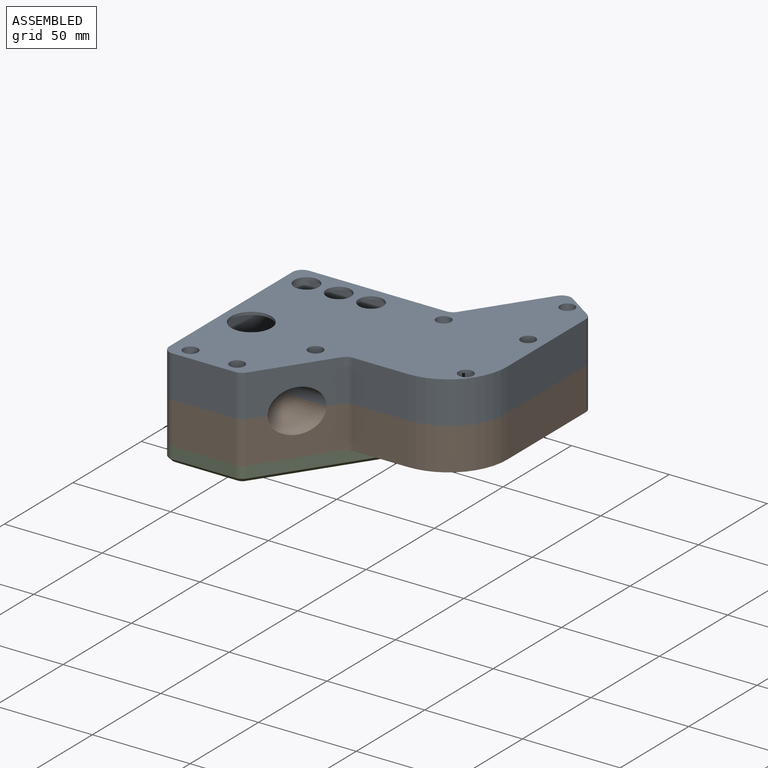
[diagram: assembled view]
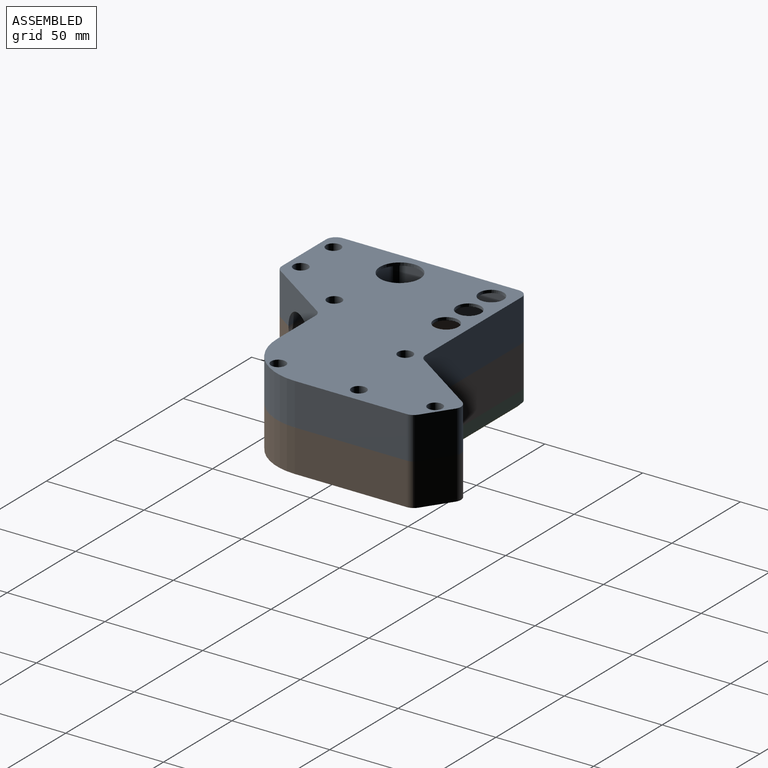
[diagram: assembled view, second angle]
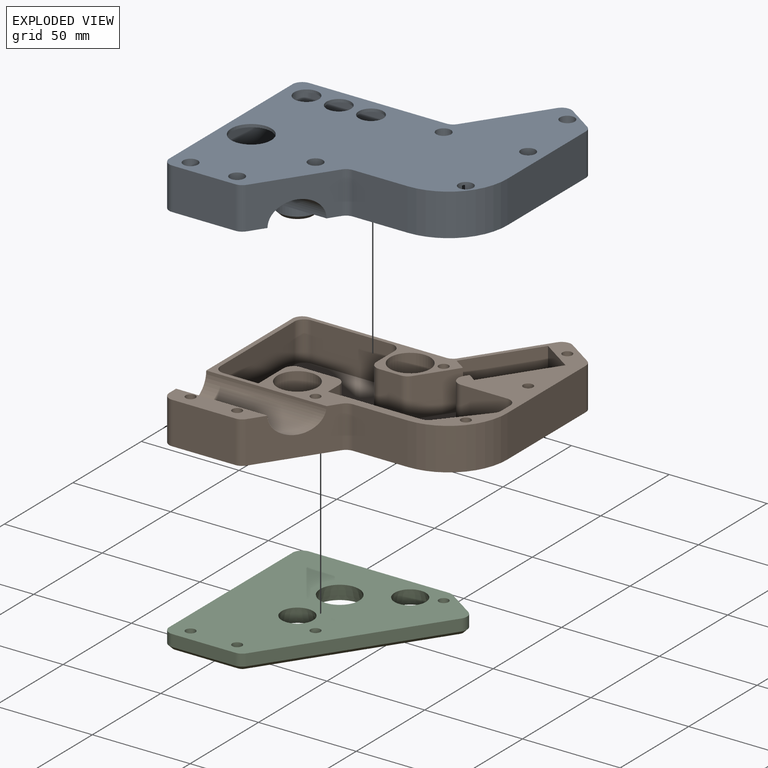
[diagram: exploded view]
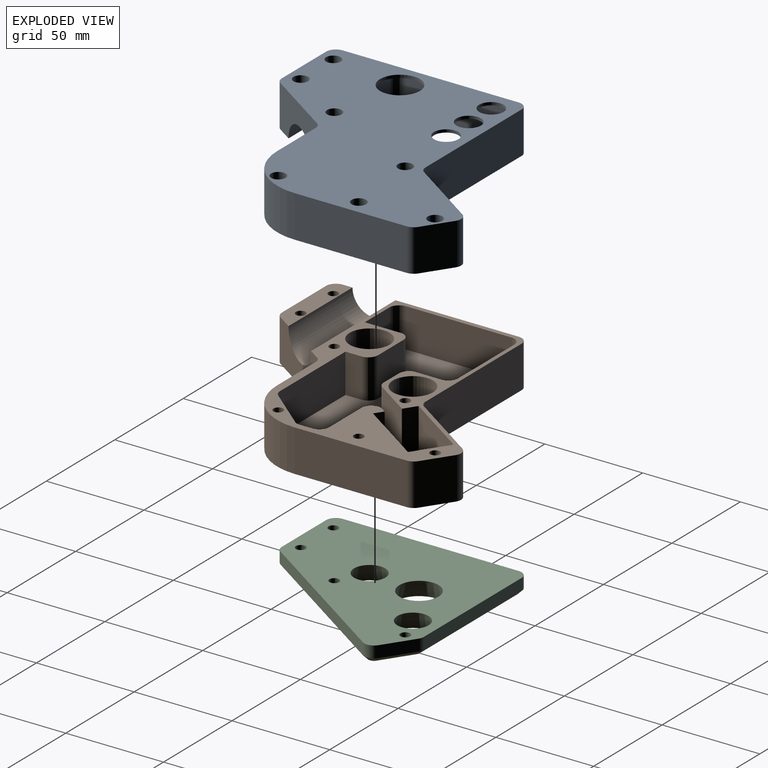
[diagram: exploded view, second angle]
ASSEMBLY  parts=3 mates=2
PART A: 82 faces, bbox 127.5x141.6x29.5 mm
  f0: plane 127.55x109.55mm, normal (0,0,-1), area 2731.5mm2, adj f1,f3,f4,f5,f6,f7,f8,f9
  f1: plane 21.04x20mm, normal (-0.77,0.64,0), area 543.6mm2, adj f0,f27,f36,f37,f53,f54
  f2: plane 32.34x21.5mm, normal (0,-1,0), area 695.3mm2, adj f10,f11,f39,f45
  f3: plane 35.39x23.87mm, normal (0.83,-0.56,0), area 688.4mm2, adj f0,f10,f11,f12,f39,f40
  f4: plane 28.05x21.5mm, normal (0,-1,0), area 603mm2, adj f0,f10,f13,f40
  f5: plane 57.34x21.5mm, normal (1,0,0), area 1232.8mm2, adj f0,f10,f13,f41
  f6: plane 21.5x13.96mm, normal (0.56,0.83,0), area 362.1mm2, adj f0,f10,f41,f42
  f7: plane 37.15x25.06mm, normal (-0.83,0.56,0), area 963.3mm2, adj f0,f10,f42,f43
  f8: plane 70.24x21.5mm, normal (0,1,0), area 1510.2mm2, adj f0,f10,f43,f44
  f9: plane 90x21.5mm, normal (-1,0,0), area 1744.9mm2, adj f0,f10,f11,f12,f44,f45
  f10: plane 141.55x127.55mm, normal (0,0,1), area 9970.5mm2, adj f2,f3,f4,f5,f6,f7,f8,f9
  f11: plane 46.75x10mm, normal (0,0,-1), area 388mm2, adj f2,f3,f9,f12,f39,f45,f55,f58
  f12: cylinder r=11mm len=61.58mm, axis (-1,0,0), area 1871.8mm2, adj f0,f3,f9,f11
  f13: cylinder r=30mm len=30mm, axis (0,0,-1), area 1013.2mm2, adj f0,f4,f5,f10
  f14: plane 20x6.45mm, normal (-1,0,0), area 129mm2, adj f0,f27,f37,f38
  f15: plane 23.55x20mm, normal (0,-1,0), area 471mm2, adj f0,f27,f28,f38
  f16: plane 20x1.81mm, normal (-0.83,0.56,0), area 43.6mm2, adj f0,f27,f28,f74
  f17: plane 20x18.53mm, normal (0.83,-0.56,0), area 447.1mm2, adj f0,f27,f29,f74
  f18: plane 20x11.11mm, normal (0,-1,0), area 222.1mm2, adj f0,f27,f29,f30
  f19: plane 20x13.25mm, normal (-1,0,0), area 265mm2, adj f0,f27,f30,f31
  f20: plane 41.18x20mm, normal (0,-1,0), area 823.7mm2, adj f0,f27,f31,f32
  f21: plane 54x20mm, normal (1,0,0), area 1080mm2, adj f0,f27,f32,f33
  f22: plane 20x17.89mm, normal (0,1,0), area 357.8mm2, adj f0,f23,f27,f33
  f23: plane 20x18.3mm, normal (-1,0,0), area 366mm2, adj f0,f22,f27,f34
  f24: plane 20x18.56mm, normal (0,1,0), area 371.2mm2, adj f0,f27,f34,f35
  f25: plane 20x8.24mm, normal (1,0,0), area 164.7mm2, adj f0,f26,f27,f35
  f26: plane 47.84x20mm, normal (0,1,0), area 956.7mm2, adj f0,f25,f27,f36
  f27: plane 121.84x64mm, normal (0,0,-1), area 4299.9mm2, adj f1,f14,f15,f16,f17,f18,f19,f20
  f28: cylinder r=5mm len=20mm, axis (0,0,-1), area 216.4mm2, adj f0,f15,f16,f27
  f29: cylinder r=5mm len=20mm, axis (0,0,1), area 97.7mm2, adj f0,f17,f18,f27
  f30: cylinder r=5mm len=20mm, axis (0,0,1), area 157.1mm2, adj f0,f18,f19,f27
  f31: cylinder r=5mm len=20mm, axis (0,0,-1), area 157.1mm2, adj f0,f19,f20,f27
  f32: cylinder r=5mm len=20mm, axis (0,0,1), area 157.1mm2, adj f0,f20,f21,f27
  f33: cylinder r=5mm len=20mm, axis (0,0,1), area 157.1mm2, adj f0,f21,f22,f27
  f34: cylinder r=5mm len=20mm, axis (0,0,1), area 157.1mm2, adj f0,f23,f24,f27
  f35: cylinder r=5mm len=20mm, axis (0,0,-1), area 157.1mm2, adj f0,f24,f25,f27
  f36: cylinder r=5mm len=20mm, axis (0,0,-1), area 87.5mm2, adj f0,f1,f26,f27
  f37: cylinder r=5mm len=20mm, axis (0,0,-1), area 69.5mm2, adj f0,f1,f14,f27
  f38: cylinder r=5mm len=20mm, axis (0,0,-1), area 157.1mm2, adj f0,f14,f15,f27
  f39: cylinder r=5mm len=21.5mm, axis (0,0,-1), area 105.1mm2, adj f2,f3,f10,f11
  f40: cylinder r=5mm len=21.5mm, axis (0,0,-1), area 105.1mm2, adj f0,f3,f4,f10
  f41: cylinder r=5mm len=21.5mm, axis (0,0,1), area 105.1mm2, adj f0,f5,f6,f10
  f42: cylinder r=5mm len=21.5mm, axis (0,0,1), area 168.9mm2, adj f0,f6,f7,f10
  f43: cylinder r=5mm len=21.5mm, axis (0,0,-1), area 105.1mm2, adj f0,f7,f8,f10
  f44: cylinder r=5mm len=21.5mm, axis (0,0,-1), area 168.9mm2, adj f0,f8,f9,f10
  f45: cylinder r=5mm len=21.5mm, axis (0,0,-1), area 168.9mm2, adj f2,f9,f10,f11
  f46: cylinder r=10mm len=20mm, axis (0,0,1), area 377mm2, adj f0,f51
  f47: plane 16x16mm, normal (0,0,-1), area 201.1mm2, adj f51
  f48: cylinder r=10mm len=20mm, axis (0,0,1), area 377mm2, adj f0,f50
  f49: plane 16x16mm, normal (0,0,-1), area 201.1mm2, adj f50
  f50: cone r=8mm half-angle=45deg, axis (0,0,1), area 159.9mm2, adj f48,f49
  f51: cone r=8mm half-angle=45deg, axis (0,0,1), area 159.9mm2, adj f46,f47
  f52: cylinder r=2.5mm len=16.5mm, axis (0,0,1), area 259.2mm2, adj f0,f53
  f53: plane 7.5x7.5mm, normal (0,0,1), area 24.5mm2, adj f1,f52,f54
  f54: cylinder r=3.75mm len=7.5mm, axis (0,0,1), area 113.4mm2, adj f1,f10,f27,f53
  f55: cylinder r=2.5mm len=16.5mm, axis (0,0,1), area 259.2mm2, adj f11,f56
  f56: plane 7.5x7.5mm, normal (0,0,1), area 24.5mm2, adj f55,f57
  f57: cylinder r=3.75mm len=7.5mm, axis (0,0,1), area 117.8mm2, adj f10,f56
  f58: cylinder r=2.5mm len=16.5mm, axis (0,0,1), area 259.2mm2, adj f11,f59
  f59: plane 7.5x7.5mm, normal (0,0,1), area 24.5mm2, adj f58,f60
  f60: cylinder r=3.75mm len=7.5mm, axis (0,0,1), area 117.8mm2, adj f10,f59
  f61: cylinder r=2.5mm len=16.5mm, axis (0,0,1), area 259.2mm2, adj f0,f62
  f62: plane 7.5x7.5mm, normal (0,0,1), area 24.5mm2, adj f61,f63
  f63: cylinder r=3.75mm len=7.5mm, axis (0,0,1), area 117.8mm2, adj f10,f62
  f64: cylinder r=2.5mm len=16.5mm, axis (0,0,1), area 259.2mm2, adj f0,f65
  f65: plane 7.5x7.5mm, normal (0,0,1), area 24.5mm2, adj f64,f66
  f66: cylinder r=3.75mm len=7.5mm, axis (0,0,1), area 117.8mm2, adj f10,f65
  f67: cylinder r=2.5mm len=16.5mm, axis (0,0,1), area 259.2mm2, adj f0,f68
  f68: plane 7.5x7.5mm, normal (0,0,1), area 24.5mm2, adj f67,f69
  f69: cylinder r=3.75mm len=7.5mm, axis (0,0,1), area 117.8mm2, adj f10,f68
  f70: cylinder r=2.5mm len=16.5mm, axis (0,0,1), area 259.2mm2, adj f0,f71
  f71: plane 7.5x7.5mm, normal (0,0,1), area 24.5mm2, adj f70,f72
  f72: cylinder r=3.75mm len=7.5mm, axis (0,0,1), area 117.8mm2, adj f10,f71
  f73: plane 34.82x23.49mm, normal (-0.83,0.56,0), area 861mm2, adj f0,f74,f76,f77
  f74: plane 20.5x17.82mm, normal (0.56,0.83,0), area 285.7mm2, adj f0,f16,f17,f27,f73,f75,f77
  f75: plane 34.82x23.49mm, normal (0.83,-0.56,0), area 861mm2, adj f0,f74,f76,f77
  f76: plane 20.5x17.82mm, normal (-0.56,-0.83,0), area 440.8mm2, adj f0,f73,f75,f77
  f77: plane 46.84x41.31mm, normal (0,0,-1), area 903mm2, adj f73,f74,f75,f76
  f78: cylinder r=6.25mm len=12.5mm, axis (0,0,1), area 58.9mm2, adj f10,f27
  f79: cylinder r=10.25mm len=20.5mm, axis (0,0,1), area 96.6mm2, adj f10,f27
  f80: cylinder r=6.25mm len=12.5mm, axis (0,0,1), area 58.9mm2, adj f10,f27
  f81: cylinder r=6.25mm len=12.5mm, axis (0,0,1), area 58.9mm2, adj f10,f27
PART B: 67 faces, bbox 127.5x141.6x21.5 mm
  f0: plane 127.55x109.55mm, normal (0,0,1), area 2758.3mm2, adj f1,f4,f6,f7,f8,f9,f10,f11
  f1: plane 20.5x17mm, normal (0.56,0.83,0), area 265.2mm2, adj f0,f19,f21,f22,f29,f30,f41
  f2: cylinder r=6mm len=12mm, axis (0,0,-1), area 56.5mm2, adj f18,f23
  f3: cylinder r=6mm len=12mm, axis (0,0,-1), area 56.5mm2, adj f16,f24
  f4: plane 90x21.5mm, normal (-1,0,0), area 1744.9mm2, adj f0,f12,f13,f14,f53,f54
  f5: plane 32.34x21.5mm, normal (0,-1,0), area 695.3mm2, adj f12,f13,f53,f59
  f6: plane 70.24x21.5mm, normal (0,1,0), area 1510.2mm2, adj f0,f12,f54,f55
  f7: plane 37.15x25.06mm, normal (-0.83,0.56,0), area 963.3mm2, adj f0,f12,f55,f56
  f8: plane 21.5x13.96mm, normal (0.56,0.83,0), area 362.1mm2, adj f0,f12,f56,f57
  f9: plane 57.34x21.5mm, normal (1,0,0), area 1232.8mm2, adj f0,f12,f26,f57
  f10: plane 28.05x21.5mm, normal (0,-1,0), area 603mm2, adj f0,f12,f26,f58
  f11: plane 35.39x23.87mm, normal (0.83,-0.56,0), area 688.4mm2, adj f0,f12,f13,f14,f58,f59
  f12: plane 141.55x127.55mm, normal (0,0,-1), area 10305.7mm2, adj f4,f5,f6,f7,f8,f9,f10,f11
  f13: plane 46.75x10mm, normal (0,0,1), area 388mm2, adj f4,f5,f11,f14,f53,f59,f60,f61
  f14: cylinder r=11mm len=61.58mm, axis (-1,0,0), area 1871.8mm2, adj f0,f4,f11,f13
  f15: cylinder r=10.25mm len=20.5mm, axis (0,0,1), area 1159.2mm2, adj f0,f16
  f16: plane 20.5x20.5mm, normal (0,0,1), area 217mm2, adj f3,f15
  f17: cylinder r=10.25mm len=20.5mm, axis (0,0,1), area 1159.2mm2, adj f0,f18
  f18: plane 20.5x20.5mm, normal (0,0,1), area 217mm2, adj f2,f17
  f19: plane 33.99x22.93mm, normal (-0.83,0.56,0), area 840.5mm2, adj f0,f1,f20,f22
  f20: plane 20.5x17mm, normal (-0.56,-0.83,0), area 420.3mm2, adj f0,f19,f21,f22
  f21: plane 33.99x22.93mm, normal (0.83,-0.56,0), area 840.5mm2, adj f0,f1,f20,f22
  f22: plane 45.45x39.92mm, normal (0,0,1), area 707.8mm2, adj f1,f19,f20,f21,f25
  f23: cone r=6mm half-angle=45deg, axis (0,0,-1), area 124.4mm2, adj f2,f12
  f24: cone r=6mm half-angle=45deg, axis (0,0,-1), area 124.4mm2, adj f3,f12
  f25: cylinder r=6.5mm len=13mm, axis (0,0,-1), area 40.8mm2, adj f12,f22
  f26: cylinder r=30mm len=30mm, axis (0,0,1), area 1013.2mm2, adj f0,f9,f10,f12
  f27: plane 20x6.45mm, normal (-1,0,0), area 129mm2, adj f0,f41,f42,f52
  f28: plane 23.55x20mm, normal (0,-1,0), area 471mm2, adj f0,f41,f42,f43
  f29: plane 20x2.22mm, normal (-0.83,0.56,0), area 53.6mm2, adj f0,f1,f41,f43
  f30: plane 20x18.95mm, normal (0.83,-0.56,0), area 457.1mm2, adj f0,f1,f41,f44
  f31: plane 20x11.11mm, normal (0,-1,0), area 222.1mm2, adj f0,f41,f44,f45
  f32: plane 20x13.25mm, normal (-1,0,0), area 265mm2, adj f0,f41,f45,f46
  f33: plane 41.18x20mm, normal (0,-1,0), area 823.7mm2, adj f0,f41,f46,f47
  f34: plane 54x20mm, normal (1,0,0), area 1080mm2, adj f0,f41,f47,f48
  f35: plane 20x17.89mm, normal (0,1,0), area 357.8mm2, adj f0,f36,f41,f48
  f36: plane 20x18.3mm, normal (-1,0,0), area 366mm2, adj f0,f35,f41,f49
  f37: plane 20x18.56mm, normal (0,1,0), area 371.2mm2, adj f0,f41,f49,f50
  f38: plane 20x8.24mm, normal (1,0,0), area 164.7mm2, adj f0,f39,f41,f50
  f39: plane 47.84x20mm, normal (0,1,0), area 956.7mm2, adj f0,f38,f41,f51
  f40: plane 21.04x20mm, normal (-0.77,0.64,0), area 548mm2, adj f0,f41,f51,f52
  f41: plane 121.84x64mm, normal (0,0,1), area 5002mm2, adj f1,f27,f28,f29,f30,f31,f32,f33
  f42: cylinder r=5mm len=20mm, axis (0,0,-1), area 157.1mm2, adj f0,f27,f28,f41
  f43: cylinder r=5mm len=20mm, axis (0,0,-1), area 216.4mm2, adj f0,f28,f29,f41
  f44: cylinder r=5mm len=20mm, axis (0,0,1), area 97.7mm2, adj f0,f30,f31,f41
  f45: cylinder r=5mm len=20mm, axis (0,0,1), area 157.1mm2, adj f0,f31,f32,f41
  f46: cylinder r=5mm len=20mm, axis (0,0,-1), area 157.1mm2, adj f0,f32,f33,f41
  f47: cylinder r=5mm len=20mm, axis (0,0,1), area 157.1mm2, adj f0,f33,f34,f41
  f48: cylinder r=5mm len=20mm, axis (0,0,1), area 157.1mm2, adj f0,f34,f35,f41
  f49: cylinder r=5mm len=20mm, axis (0,0,1), area 157.1mm2, adj f0,f36,f37,f41
  f50: cylinder r=5mm len=20mm, axis (0,0,-1), area 157.1mm2, adj f0,f37,f38,f41
  f51: cylinder r=5mm len=20mm, axis (0,0,-1), area 87.5mm2, adj f0,f39,f40,f41
  f52: cylinder r=5mm len=20mm, axis (0,0,-1), area 69.5mm2, adj f0,f27,f40,f41
  f53: cylinder r=5mm len=21.5mm, axis (0,0,1), area 168.9mm2, adj f4,f5,f12,f13
  f54: cylinder r=5mm len=21.5mm, axis (0,0,1), area 168.9mm2, adj f0,f4,f6,f12
  f55: cylinder r=5mm len=21.5mm, axis (0,0,1), area 105.1mm2, adj f0,f6,f7,f12
  f56: cylinder r=5mm len=21.5mm, axis (0,0,-1), area 168.9mm2, adj f0,f7,f8,f12
  f57: cylinder r=5mm len=21.5mm, axis (0,0,-1), area 105.1mm2, adj f0,f8,f9,f12
  f58: cylinder r=5mm len=21.5mm, axis (0,0,1), area 105.1mm2, adj f0,f10,f11,f12
  f59: cylinder r=5mm len=21.5mm, axis (0,0,1), area 105.1mm2, adj f5,f11,f12,f13
  f60: cylinder r=2.5mm len=21.5mm, axis (0,0,1), area 337.7mm2, adj f12,f13
  f61: cylinder r=2.5mm len=21.5mm, axis (0,0,1), area 337.7mm2, adj f12,f13
  f62: cylinder r=2.5mm len=21.5mm, axis (0,0,1), area 337.7mm2, adj f0,f12
  f63: cylinder r=2.5mm len=21.5mm, axis (0,0,1), area 337.7mm2, adj f0,f12
  f64: cylinder r=2.5mm len=21.5mm, axis (0,0,1), area 337.7mm2, adj f0,f12
  f65: cylinder r=2.5mm len=21.5mm, axis (0,0,1), area 337.7mm2, adj f0,f12
  f66: cylinder r=2.5mm len=21.5mm, axis (0,0,1), area 337.7mm2, adj f0,f12
PART C: 29 faces, bbox 96.3x100x8 mm
  f0: plane 71.37x6mm, normal (0,1,0), area 428.2mm2, adj f6,f10,f14,f27
  f1: plane 14.9x10.05mm, normal (0.56,0.83,0), area 107.8mm2, adj f6,f10,f11,f23
  f2: plane 79.95x53.93mm, normal (0.83,-0.56,0), area 578.6mm2, adj f6,f11,f12,f19
  f3: plane 32.34x6mm, normal (0,-1,0), area 194mm2, adj f6,f12,f13,f22
  f4: plane 90x6mm, normal (-1,0,0), area 540mm2, adj f6,f13,f14,f26
  f5: plane 96x92.27mm, normal (0,0,-1), area 5327mm2, adj f7,f8,f9,f15,f16,f17,f18,f19
  f6: plane 100x96.27mm, normal (0,0,1), area 6357.9mm2, adj f0,f1,f2,f3,f4,f7,f8,f9
  f7: cone r=8mm half-angle=14deg, axis (0,0,-1), area 466.3mm2, adj f5,f6
  f8: cone r=10mm half-angle=14deg, axis (0,0,-1), area 569.9mm2, adj f5,f6
  f9: cone r=8mm half-angle=14deg, axis (0,0,-1), area 466.3mm2, adj f5,f6
  f10: cylinder r=5mm len=6mm, axis (0,0,1), area 17.8mm2, adj f0,f1,f6,f25
  f11: cylinder r=5mm len=6.94mm, axis (0,0,1), area 47.1mm2, adj f1,f2,f6,f21
  f12: cylinder r=5mm len=6mm, axis (0,0,1), area 29.3mm2, adj f2,f3,f6,f20
  f13: cylinder r=5mm len=6mm, axis (0,0,1), area 47.1mm2, adj f3,f4,f6,f24
  f14: cylinder r=5mm len=6mm, axis (0,0,1), area 47.1mm2, adj f0,f4,f6,f28
  f15: cylinder r=2.5mm len=8mm, axis (0,0,1), area 125.7mm2, adj f5,f6
  f16: cylinder r=2.5mm len=8mm, axis (0,0,1), area 125.7mm2, adj f5,f6
  f17: cylinder r=2.5mm len=8mm, axis (0,0,1), area 125.7mm2, adj f5,f6
  f18: cylinder r=2.5mm len=8mm, axis (0,0,1), area 125.7mm2, adj f5,f6
  f19: plane 81.07x55.59mm, normal (0.59,-0.4,-0.71), area 272.8mm2, adj f2,f5,f20,f21
  f20: cone r=3mm half-angle=45deg, axis (0,0,1), area 11.1mm2, adj f5,f12,f19,f22
  f21: cone r=3mm half-angle=45deg, axis (0,0,1), area 17.8mm2, adj f5,f11,f19,f23
  f22: plane 32.34x2mm, normal (0,-0.71,-0.71), area 91.5mm2, adj f3,f5,f20,f24
  f23: plane 16.02x11.71mm, normal (0.4,0.59,-0.71), area 50.8mm2, adj f1,f5,f21,f25
  f24: cone r=3mm half-angle=45deg, axis (0,0,1), area 17.8mm2, adj f5,f13,f22,f26
  f25: cone r=3mm half-angle=45deg, axis (0,0,1), area 6.7mm2, adj f5,f10,f23,f27
  f26: plane 90x2mm, normal (-0.71,0,-0.71), area 254.6mm2, adj f4,f5,f24,f28
  f27: plane 71.37x2mm, normal (0,0.71,-0.71), area 201.9mm2, adj f0,f5,f25,f28
  f28: cone r=3mm half-angle=45deg, axis (0,0,1), area 17.8mm2, adj f5,f14,f26,f27
PLACE A at identity fixed
PLACE B at identity
PLACE C at identity
MATE slider A.f11 <-> B.f13  axis (0,0,-1) through (-33.99,-68.29,0)mm
MATE slider C.f6 <-> B.f12  axis (0,0,1) through (-33.99,-68.29,-21.5)mm
